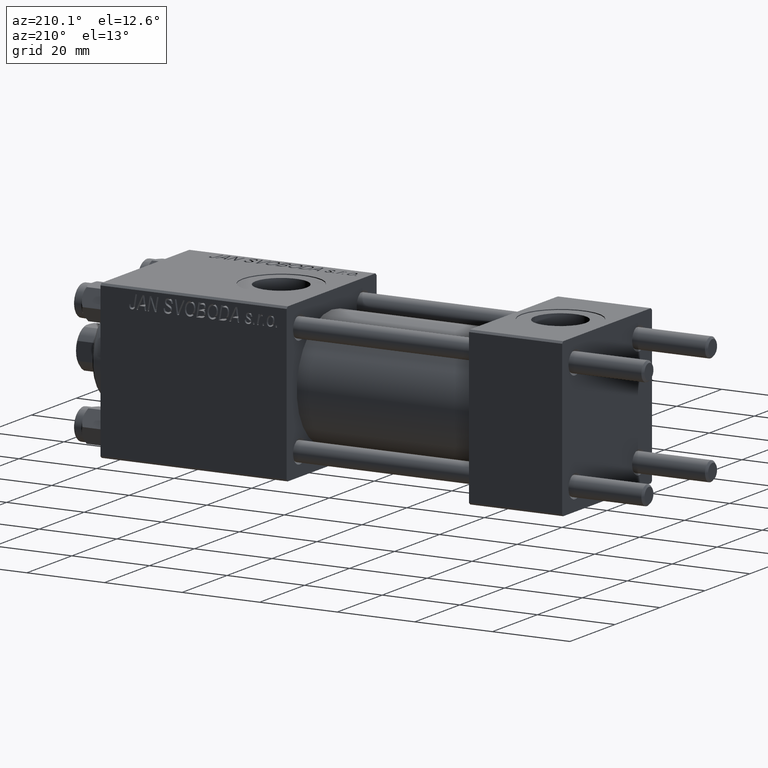
[diagram: clean part render]
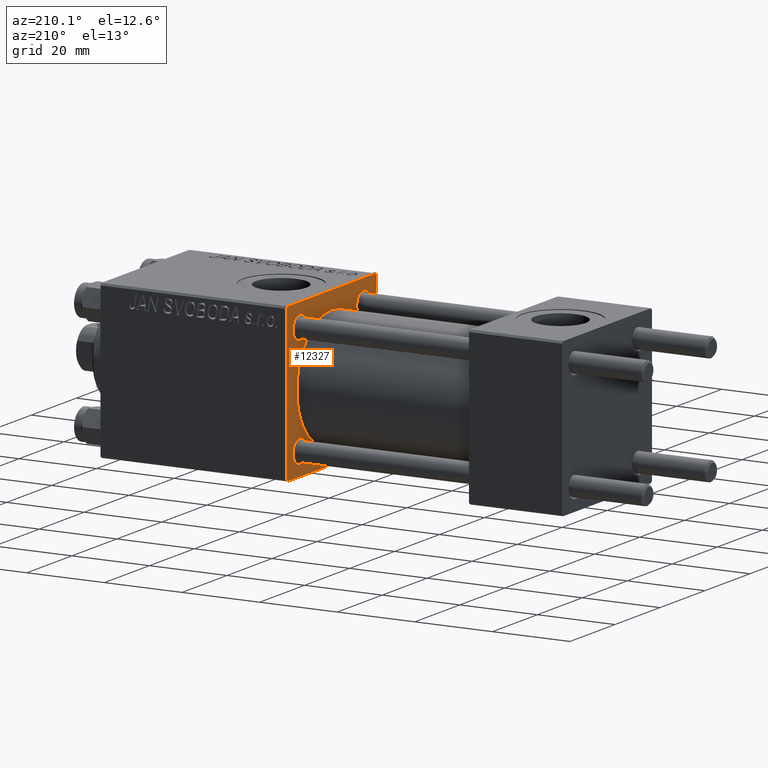
[diagram: same view with one face highlighted and labeled with its STEP entity id]
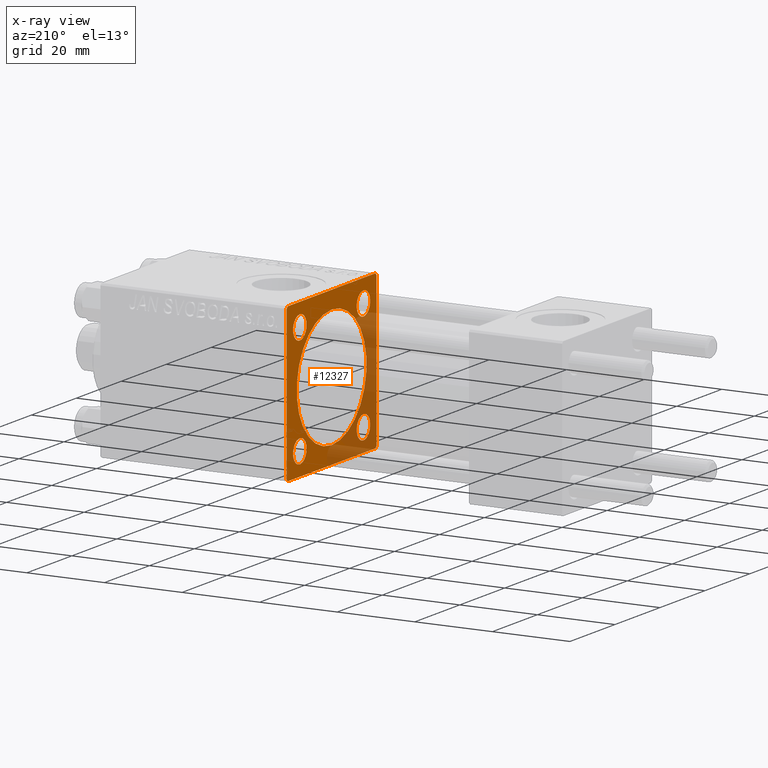
[diagram: x-ray of the same camera — body ghosted, the highlighted face saturated]
A machine part, auxiliary view. The second image highlights one B-rep face of the part: STEP entity #12327.
The next image is the same camera in x-ray: the body ghosted, the highlighted face saturated — about 35% of this face is hidden behind the body in this view.
In plain terms, the highlighted planar face has unit normal (-1, 0, 0).
Its self-contained STEP definition (entity closure, byte-faithful):
#469 = EDGE_CURVE ( 'NONE', #5702, #38357, #28665, .T. ) ;
#792 = CARTESIAN_POINT ( 'NONE',  ( 71.00000000000001421, 0.000000000000000000, 0.000000000000000000 ) ) ;
#1167 = LINE ( 'NONE', #9003, #45189 ) ;
#1172 = ORIENTED_EDGE ( 'NONE', *, *, #2412, .T. ) ;
#1296 = DIRECTION ( 'NONE',  ( 0.000000000000000000, 0.000000000000000000, -1.000000000000000000 ) ) ;
#1678 = DIRECTION ( 'NONE',  ( 1.000000000000000000, 0.000000000000000000, 0.000000000000000000 ) ) ;
#1985 = CARTESIAN_POINT ( 'NONE',  ( 71.00000000000001421, 19.99999999999999645, 19.49999999999998579 ) ) ;
#2209 = CARTESIAN_POINT ( 'NONE',  ( 71.00000000000001421, 14.15000000000000036, -11.15000000000002522 ) ) ;
#2412 = EDGE_CURVE ( 'NONE', #44165, #42907, #41771, .T. ) ;
#2556 = ORIENTED_EDGE ( 'NONE', *, *, #25622, .T. ) ;
#2896 = CARTESIAN_POINT ( 'NONE',  ( 71.00000000000001421, -19.50000000000002487, -20.00000000000000000 ) ) ;
#3840 = VERTEX_POINT ( 'NONE', #34981 ) ;
#4041 = ORIENTED_EDGE ( 'NONE', *, *, #19959, .T. ) ;
#4365 = DIRECTION ( 'NONE',  ( 1.000000000000000000, 0.000000000000000000, 0.000000000000000000 ) ) ;
#4592 = AXIS2_PLACEMENT_3D ( 'NONE', #15240, #30636, #8396 ) ;
#5198 = CARTESIAN_POINT ( 'NONE',  ( 71.00000000000001421, 14.15000000000000036, 14.15000000000000036 ) ) ;
#5349 = ORIENTED_EDGE ( 'NONE', *, *, #14230, .T. ) ;
#5461 = CARTESIAN_POINT ( 'NONE',  ( 71.00000000000001421, 0.000000000000000000, 0.000000000000000000 ) ) ;
#5702 = VERTEX_POINT ( 'NONE', #2896 ) ;
#5951 = DIRECTION ( 'NONE',  ( 0.000000000000000000, 0.000000000000000000, 1.000000000000000000 ) ) ;
#6644 = CIRCLE ( 'NONE', #35639, 2.999999999999976463 ) ;
#6977 = CARTESIAN_POINT ( 'NONE',  ( 71.00000000000001421, 14.15000000000000036, 14.15000000000000036 ) ) ;
#7107 = DIRECTION ( 'NONE',  ( -0.000000000000000000, -0.7071067811865474617, -0.7071067811865474617 ) ) ;
#7117 = ORIENTED_EDGE ( 'NONE', *, *, #35105, .T. ) ;
#7128 = CARTESIAN_POINT ( 'NONE',  ( 71.00000000000001421, 19.99999999999999645, -19.50000000000000000 ) ) ;
#7409 = EDGE_CURVE ( 'NONE', #42244, #34129, #42594, .T. ) ;
#7507 = CARTESIAN_POINT ( 'NONE',  ( 71.00000000000001421, 19.49999999999996803, 20.00000000000000000 ) ) ;
#7854 = CARTESIAN_POINT ( 'NONE',  ( 71.00000000000001421, 19.99999999999999645, 20.00000000000000000 ) ) ;
#7913 = CARTESIAN_POINT ( 'NONE',  ( 71.00000000000001421, 0.000000000000000000, 15.50000000000000000 ) ) ;
#8075 = EDGE_LOOP ( 'NONE', ( #31986, #2556 ) ) ;
#8189 = DIRECTION ( 'NONE',  ( 0.000000000000000000, 0.000000000000000000, -1.000000000000000000 ) ) ;
#8396 = DIRECTION ( 'NONE',  ( -0.000000000000000000, 0.000000000000000000, 1.000000000000000000 ) ) ;
#8635 = EDGE_CURVE ( 'NONE', #42152, #38357, #22434, .T. ) ;
#8768 = VECTOR ( 'NONE', #47726, 999.9999999999998863 ) ;
#9003 = CARTESIAN_POINT ( 'NONE',  ( 71.00000000000001421, 19.99999999999999645, -20.00000000000000000 ) ) ;
#9008 = VERTEX_POINT ( 'NONE', #19327 ) ;
#9066 = DIRECTION ( 'NONE',  ( 0.000000000000000000, 0.000000000000000000, 1.000000000000000000 ) ) ;
#9437 = CARTESIAN_POINT ( 'NONE',  ( 71.00000000000001421, -14.15000000000000036, 17.15000000000000568 ) ) ;
#9798 = CIRCLE ( 'NONE', #42847, 3.000000000000000888 ) ;
#10186 = DIRECTION ( 'NONE',  ( 1.000000000000000000, 0.000000000000000000, 0.000000000000000000 ) ) ;
#10417 = AXIS2_PLACEMENT_3D ( 'NONE', #792, #28066, #1296 ) ;
#10691 = CARTESIAN_POINT ( 'NONE',  ( 71.00000000000001421, -14.15000000000000036, -14.15000000000000036 ) ) ;
#10944 = FACE_BOUND ( 'NONE', #44154, .T. ) ;
#11031 = DIRECTION ( 'NONE',  ( 0.000000000000000000, 0.000000000000000000, 1.000000000000000000 ) ) ;
#11257 = VERTEX_POINT ( 'NONE', #9437 ) ;
#11388 = CARTESIAN_POINT ( 'NONE',  ( 71.00000000000001421, 19.74999999999999645, -19.74999999999999645 ) ) ;
#11974 = VECTOR ( 'NONE', #25186, 1000.000000000000114 ) ;
#12236 = VERTEX_POINT ( 'NONE', #30142 ) ;
#12296 = CARTESIAN_POINT ( 'NONE',  ( 71.00000000000001421, 14.15000000000000036, -17.14999999999997726 ) ) ;
#12327 = ADVANCED_FACE ( 'NONE', ( #49319, #46268, #14744, #10944, #41994, #19019 ), #34415, .T. ) ;
#12368 = CIRCLE ( 'NONE', #30098, 3.000000000000004441 ) ;
#12839 = CARTESIAN_POINT ( 'NONE',  ( 71.00000000000001421, -14.15000000000000036, 11.14999999999999858 ) ) ;
#12858 = CARTESIAN_POINT ( 'NONE',  ( 71.00000000000001421, -14.15000000000000036, -14.15000000000000036 ) ) ;
#13331 = EDGE_CURVE ( 'NONE', #29562, #3840, #38626, .T. ) ;
#13496 = DIRECTION ( 'NONE',  ( 1.000000000000000000, 0.000000000000000000, 0.000000000000000000 ) ) ;
#13520 = CARTESIAN_POINT ( 'NONE',  ( 71.00000000000001421, -19.75000000000028066, -19.74999999999973355 ) ) ;
#13788 = ORIENTED_EDGE ( 'NONE', *, *, #18616, .T. ) ;
#13869 = DIRECTION ( 'NONE',  ( 0.000000000000000000, 0.000000000000000000, 1.000000000000000000 ) ) ;
#14003 = CARTESIAN_POINT ( 'NONE',  ( 71.00000000000001421, 14.15000000000000036, -14.15000000000000036 ) ) ;
#14083 = CARTESIAN_POINT ( 'NONE',  ( 71.00000000000001421, -19.74999999999973710, 19.75000000000028422 ) ) ;
#14230 = EDGE_CURVE ( 'NONE', #42152, #44140, #40330, .T. ) ;
#14744 = FACE_BOUND ( 'NONE', #22012, .T. ) ;
#15093 = EDGE_LOOP ( 'NONE', ( #4041, #7117 ) ) ;
#15107 = VERTEX_POINT ( 'NONE', #7507 ) ;
#15240 = CARTESIAN_POINT ( 'NONE',  ( 71.00000000000001421, 0.000000000000000000, 0.000000000000000000 ) ) ;
#16190 = CARTESIAN_POINT ( 'NONE',  ( 71.00000000000001421, 19.74999999999971578, 19.75000000000026290 ) ) ;
#17151 = ORIENTED_EDGE ( 'NONE', *, *, #22763, .T. ) ;
#17850 = DIRECTION ( 'NONE',  ( 1.000000000000000000, 0.000000000000000000, 0.000000000000000000 ) ) ;
#18019 = AXIS2_PLACEMENT_3D ( 'NONE', #5461, #1678, #44586 ) ;
#18274 = EDGE_CURVE ( 'NONE', #11257, #30491, #29738, .T. ) ;
#18327 = DIRECTION ( 'NONE',  ( 1.000000000000000000, 0.000000000000000000, 0.000000000000000000 ) ) ;
#18356 = ORIENTED_EDGE ( 'NONE', *, *, #30002, .F. ) ;
#18616 = EDGE_CURVE ( 'NONE', #15107, #24175, #43939, .T. ) ;
#19019 = FACE_OUTER_BOUND ( 'NONE', #45571, .T. ) ;
#19327 = CARTESIAN_POINT ( 'NONE',  ( 71.00000000000001421, 14.15000000000000036, 11.14999999999999858 ) ) ;
#19853 = DIRECTION ( 'NONE',  ( 0.000000000000000000, -1.000000000000000000, 0.000000000000000000 ) ) ;
#19959 = EDGE_CURVE ( 'NONE', #37011, #12236, #42667, .T. ) ;
#20172 = VERTEX_POINT ( 'NONE', #41923 ) ;
#20436 = VECTOR ( 'NONE', #39384, 1000.000000000000000 ) ;
#20824 = AXIS2_PLACEMENT_3D ( 'NONE', #37571, #34298, #13869 ) ;
#21124 = ORIENTED_EDGE ( 'NONE', *, *, #40982, .T. ) ;
#21607 = ORIENTED_EDGE ( 'NONE', *, *, #13331, .T. ) ;
#21696 = EDGE_CURVE ( 'NONE', #20172, #9008, #24186, .T. ) ;
#21766 = AXIS2_PLACEMENT_3D ( 'NONE', #6977, #18327, #42056 ) ;
#22012 = EDGE_LOOP ( 'NONE', ( #29690, #25787 ) ) ;
#22189 = DIRECTION ( 'NONE',  ( 0.000000000000000000, 8.673617379884036705E-17, -1.000000000000000000 ) ) ;
#22434 = LINE ( 'NONE', #25231, #24688 ) ;
#22763 = EDGE_CURVE ( 'NONE', #3840, #5702, #1167, .T. ) ;
#23992 = LINE ( 'NONE', #7854, #20436 ) ;
#24175 = VERTEX_POINT ( 'NONE', #1985 ) ;
#24186 = CIRCLE ( 'NONE', #21766, 3.000000000000000888 ) ;
#24688 = VECTOR ( 'NONE', #22189, 1000.000000000000000 ) ;
#25127 = DIRECTION ( 'NONE',  ( 0.000000000000000000, -0.7071067811865376918, 0.7071067811865574537 ) ) ;
#25186 = DIRECTION ( 'NONE',  ( -0.000000000000000000, 0.7071067811865573427, 0.7071067811865376918 ) ) ;
#25231 = CARTESIAN_POINT ( 'NONE',  ( 71.00000000000001421, -20.00000000000000355, 19.99999999999999645 ) ) ;
#25255 = CIRCLE ( 'NONE', #18019, 15.50000000000000000 ) ;
#25622 = EDGE_CURVE ( 'NONE', #9008, #20172, #9798, .T. ) ;
#25625 = VECTOR ( 'NONE', #7107, 1000.000000000000114 ) ;
#25787 = ORIENTED_EDGE ( 'NONE', *, *, #27825, .T. ) ;
#25845 = EDGE_CURVE ( 'NONE', #24175, #29562, #42521, .T. ) ;
#26092 = DIRECTION ( 'NONE',  ( 0.000000000000000000, 0.000000000000000000, 1.000000000000000000 ) ) ;
#26733 = CIRCLE ( 'NONE', #42867, 2.999999999999976463 ) ;
#27180 = ORIENTED_EDGE ( 'NONE', *, *, #25845, .T. ) ;
#27825 = EDGE_CURVE ( 'NONE', #34129, #42244, #6644, .T. ) ;
#28066 = DIRECTION ( 'NONE',  ( 1.000000000000000000, 0.000000000000000000, 0.000000000000000000 ) ) ;
#28246 = DIRECTION ( 'NONE',  ( 1.000000000000000000, 0.000000000000000000, 0.000000000000000000 ) ) ;
#28665 = LINE ( 'NONE', #13520, #49767 ) ;
#29480 = EDGE_LOOP ( 'NONE', ( #36761, #35957 ) ) ;
#29562 = VERTEX_POINT ( 'NONE', #7128 ) ;
#29690 = ORIENTED_EDGE ( 'NONE', *, *, #7409, .T. ) ;
#29738 = CIRCLE ( 'NONE', #37762, 3.000000000000004441 ) ;
#29947 = ORIENTED_EDGE ( 'NONE', *, *, #469, .T. ) ;
#30002 = EDGE_CURVE ( 'NONE', #15107, #44140, #23992, .T. ) ;
#30092 = ORIENTED_EDGE ( 'NONE', *, *, #8635, .F. ) ;
#30098 = AXIS2_PLACEMENT_3D ( 'NONE', #42078, #17850, #34005 ) ;
#30142 = CARTESIAN_POINT ( 'NONE',  ( 71.00000000000001421, 1.898202538678397557E-15, -15.50000000000000000 ) ) ;
#30336 = CARTESIAN_POINT ( 'NONE',  ( 71.00000000000001421, -19.50000000000001776, 19.99999999999999645 ) ) ;
#30491 = VERTEX_POINT ( 'NONE', #12839 ) ;
#30605 = EDGE_CURVE ( 'NONE', #30491, #11257, #12368, .T. ) ;
#30636 = DIRECTION ( 'NONE',  ( -1.000000000000000000, 0.000000000000000000, -0.000000000000000000 ) ) ;
#31986 = ORIENTED_EDGE ( 'NONE', *, *, #21696, .T. ) ;
#33167 = VECTOR ( 'NONE', #8189, 1000.000000000000000 ) ;
#34005 = DIRECTION ( 'NONE',  ( 0.000000000000000000, 0.000000000000000000, 1.000000000000000000 ) ) ;
#34129 = VERTEX_POINT ( 'NONE', #12296 ) ;
#34298 = DIRECTION ( 'NONE',  ( 1.000000000000000000, 0.000000000000000000, 0.000000000000000000 ) ) ;
#34415 = PLANE ( 'NONE',  #4592 ) ;
#34981 = CARTESIAN_POINT ( 'NONE',  ( 71.00000000000001421, 19.49999999999999645, -20.00000000000000000 ) ) ;
#35105 = EDGE_CURVE ( 'NONE', #12236, #37011, #25255, .T. ) ;
#35639 = AXIS2_PLACEMENT_3D ( 'NONE', #14003, #13496, #44281 ) ;
#35957 = ORIENTED_EDGE ( 'NONE', *, *, #30605, .T. ) ;
#36761 = ORIENTED_EDGE ( 'NONE', *, *, #18274, .T. ) ;
#36828 = AXIS2_PLACEMENT_3D ( 'NONE', #10691, #10186, #26092 ) ;
#37011 = VERTEX_POINT ( 'NONE', #7913 ) ;
#37571 = CARTESIAN_POINT ( 'NONE',  ( 71.00000000000001421, 14.15000000000000036, -14.15000000000000036 ) ) ;
#37762 = AXIS2_PLACEMENT_3D ( 'NONE', #49406, #4365, #11031 ) ;
#38357 = VERTEX_POINT ( 'NONE', #38456 ) ;
#38456 = CARTESIAN_POINT ( 'NONE',  ( 71.00000000000001421, -20.00000000000000000, -19.50000000000001066 ) ) ;
#38626 = LINE ( 'NONE', #11388, #25625 ) ;
#38878 = CARTESIAN_POINT ( 'NONE',  ( 71.00000000000001421, -14.15000000000000036, -17.14999999999997726 ) ) ;
#39384 = DIRECTION ( 'NONE',  ( 0.000000000000000000, -1.000000000000000000, -8.673617379884035472E-17 ) ) ;
#40330 = LINE ( 'NONE', #14083, #11974 ) ;
#40405 = CARTESIAN_POINT ( 'NONE',  ( 71.00000000000001421, -14.15000000000000036, -11.15000000000002522 ) ) ;
#40982 = EDGE_CURVE ( 'NONE', #42907, #44165, #26733, .T. ) ;
#41771 = CIRCLE ( 'NONE', #36828, 2.999999999999976463 ) ;
#41923 = CARTESIAN_POINT ( 'NONE',  ( 71.00000000000001421, 14.15000000000000036, 17.15000000000000568 ) ) ;
#41994 = FACE_BOUND ( 'NONE', #15093, .T. ) ;
#42056 = DIRECTION ( 'NONE',  ( 0.000000000000000000, 0.000000000000000000, 1.000000000000000000 ) ) ;
#42078 = CARTESIAN_POINT ( 'NONE',  ( 71.00000000000001421, -14.15000000000000036, 14.15000000000000036 ) ) ;
#42152 = VERTEX_POINT ( 'NONE', #46416 ) ;
#42244 = VERTEX_POINT ( 'NONE', #2209 ) ;
#42521 = LINE ( 'NONE', #49607, #33167 ) ;
#42594 = CIRCLE ( 'NONE', #20824, 2.999999999999976463 ) ;
#42667 = CIRCLE ( 'NONE', #10417, 15.50000000000000000 ) ;
#42847 = AXIS2_PLACEMENT_3D ( 'NONE', #5198, #43575, #5951 ) ;
#42867 = AXIS2_PLACEMENT_3D ( 'NONE', #12858, #28246, #9066 ) ;
#42907 = VERTEX_POINT ( 'NONE', #40405 ) ;
#43575 = DIRECTION ( 'NONE',  ( 1.000000000000000000, 0.000000000000000000, 0.000000000000000000 ) ) ;
#43939 = LINE ( 'NONE', #16190, #8768 ) ;
#44140 = VERTEX_POINT ( 'NONE', #30336 ) ;
#44154 = EDGE_LOOP ( 'NONE', ( #21124, #1172 ) ) ;
#44165 = VERTEX_POINT ( 'NONE', #38878 ) ;
#44281 = DIRECTION ( 'NONE',  ( 0.000000000000000000, 0.000000000000000000, 1.000000000000000000 ) ) ;
#44586 = DIRECTION ( 'NONE',  ( 0.000000000000000000, 0.000000000000000000, -1.000000000000000000 ) ) ;
#45189 = VECTOR ( 'NONE', #19853, 1000.000000000000000 ) ;
#45571 = EDGE_LOOP ( 'NONE', ( #17151, #29947, #30092, #5349, #18356, #13788, #27180, #21607 ) ) ;
#46268 = FACE_BOUND ( 'NONE', #8075, .T. ) ;
#46416 = CARTESIAN_POINT ( 'NONE',  ( 71.00000000000001421, -20.00000000000000355, 19.50000000000002487 ) ) ;
#47726 = DIRECTION ( 'NONE',  ( 0.000000000000000000, 0.7071067811865574537, -0.7071067811865376918 ) ) ;
#49319 = FACE_BOUND ( 'NONE', #29480, .T. ) ;
#49406 = CARTESIAN_POINT ( 'NONE',  ( 71.00000000000001421, -14.15000000000000036, 14.15000000000000036 ) ) ;
#49607 = CARTESIAN_POINT ( 'NONE',  ( 71.00000000000001421, 19.99999999999999645, 20.00000000000000000 ) ) ;
#49767 = VECTOR ( 'NONE', #25127, 999.9999999999998863 ) ;